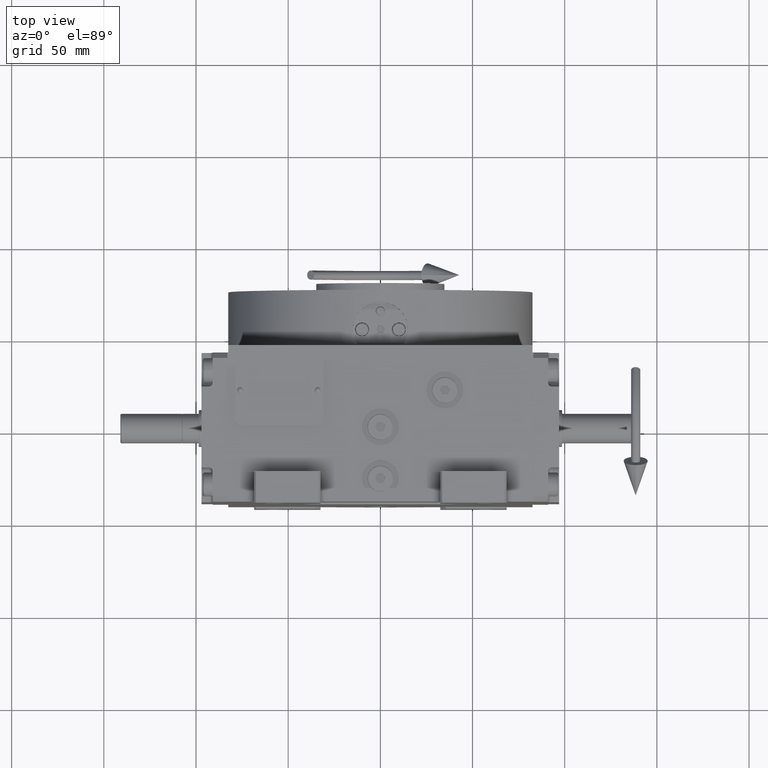
[diagram: clean part render]
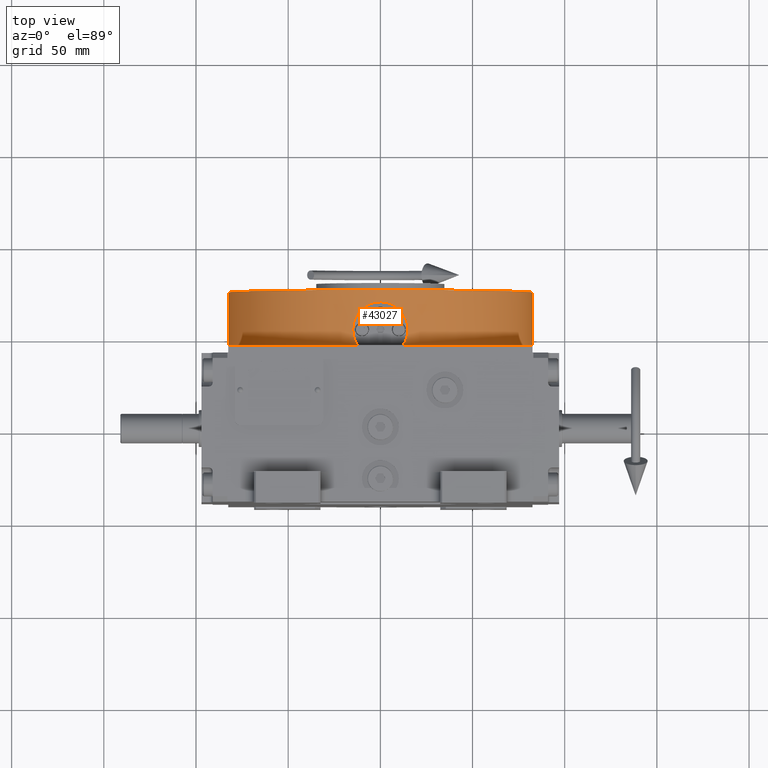
[diagram: same view with one face highlighted and labeled with its STEP entity id]
A machine part, top view. The second image highlights one B-rep face of the part: STEP entity #43027.
In plain terms, the highlighted cylindrical surface (partial cylindrical patch) has radius 82.5 mm, axis along (0, 1, 0).
Its self-contained STEP definition (entity closure, byte-faithful):
#1494 = AXIS2_PLACEMENT_3D ( 'NONE', #35646, #18937, #4670 ) ;
#1743 = B_SPLINE_CURVE_WITH_KNOTS ( 'NONE', 3,
 ( #62544, #32519, #55246, #17620, #16118, #22794, #45529, #57073, #48308, #57695 ),
 .UNSPECIFIED., .F., .F.,
 ( 4, 2, 2, 2, 4 ),
 ( 0.000000000000000000, 0.01817764895628013258, 0.03635529791256026516, 0.07271059582512048869, 0.1454211916502409219 ),
 .UNSPECIFIED. ) ;
#1829 = CARTESIAN_POINT ( 'NONE',  ( -4.811342207377684588, -82.36459328412949787, 23.24128728243599440 ) ) ;
#2223 = EDGE_CURVE ( 'NONE', #39629, #24940, #40458, .T. ) ;
#2483 = CARTESIAN_POINT ( 'NONE',  ( 11.30536172407987650, -81.72474593102090523, 18.90776664378990901 ) ) ;
#2791 = CARTESIAN_POINT ( 'NONE',  ( 2.431423179542332669, -82.46555639784538982, 23.80969995749037338 ) ) ;
#3310 = VERTEX_POINT ( 'NONE', #13736 ) ;
#3597 = CARTESIAN_POINT ( 'NONE',  ( -12.00000000000000000, -81.62260716247999426, 0.000000000000000000 ) ) ;
#4315 = CARTESIAN_POINT ( 'NONE',  ( 14.74248490922440880, -81.17372402366743245, 5.799389260054983453 ) ) ;
#4321 = ORIENTED_EDGE ( 'NONE', *, *, #19583, .T. ) ;
#4670 = DIRECTION ( 'NONE',  ( -1.000000000000000000, 0.000000000000000000, 0.000000000000000000 ) ) ;
#5190 = CARTESIAN_POINT ( 'NONE',  ( 82.49999999999998579, -1.010322486831990379E-14, 0.000000000000000000 ) ) ;
#5601 = EDGE_CURVE ( 'NONE', #38348, #8792, #55719, .T. ) ;
#6057 = CARTESIAN_POINT ( 'NONE',  ( 82.49999999999998579, -1.010300241903009221E-14, 0.000000000000000000 ) ) ;
#6683 = CARTESIAN_POINT ( 'NONE',  ( 14.21962999529760197, -81.26544602374748649, 13.80011905861209520 ) ) ;
#6981 = CARTESIAN_POINT ( 'NONE',  ( -14.05465484448405888, -81.29423505555718066, 14.26388389374271348 ) ) ;
#7312 = CARTESIAN_POINT ( 'NONE',  ( -0.9749065849585353272, -82.49566829684266622, 23.97626193698611630 ) ) ;
#7635 = CARTESIAN_POINT ( 'NONE',  ( 13.02891348785843917, -81.46657792094852368, 16.49810643378964770 ) ) ;
#7746 = CARTESIAN_POINT ( 'NONE',  ( 0.000000000000000000, 0.000000000000000000, 0.000000000000000000 ) ) ;
#8792 = VERTEX_POINT ( 'NONE', #60413 ) ;
#10440 = CARTESIAN_POINT ( 'NONE',  ( 12.00000000000000000, -81.62260716247999426, 0.000000000000000000 ) ) ;
#11549 = CARTESIAN_POINT ( 'NONE',  ( 14.50226475351318811, -81.21548443283947449, 12.86326937730964204 ) ) ;
#11874 = CARTESIAN_POINT ( 'NONE',  ( 8.730210659104772120, -82.03781768206627589, 21.20768323055676063 ) ) ;
#12050 = EDGE_CURVE ( 'NONE', #3310, #24940, #62596, .T. ) ;
#12171 = CARTESIAN_POINT ( 'NONE',  ( -14.97611104150528405, -81.12933149880575456, 9.976411005623861072 ) ) ;
#12502 = CARTESIAN_POINT ( 'NONE',  ( -14.62018483521941903, -81.19427011681041506, 12.38958309517191125 ) ) ;
#13529 = CARTESIAN_POINT ( 'NONE',  ( 0.000000000000000000, 0.000000000000000000, 30.49999999999999289 ) ) ;
#13736 = CARTESIAN_POINT ( 'NONE',  ( -82.50000000000001421, 2.020633851199993078E-14, 30.49999999999999289 ) ) ;
#14050 = CARTESIAN_POINT ( 'NONE',  ( 15.00017790217110836, -81.12487080390822314, 7.399368257337098242 ) ) ;
#14665 = CARTESIAN_POINT ( 'NONE',  ( 13.98285332921872559, -81.30680104435214162, 3.511842341530857947 ) ) ;
#15440 = ORIENTED_EDGE ( 'NONE', *, *, #17759, .T. ) ;
#15954 = DIRECTION ( 'NONE',  ( 0.000000000000000000, 0.000000000000000000, 1.000000000000000000 ) ) ;
#16118 = CARTESIAN_POINT ( 'NONE',  ( -13.10624451707161064, -81.45251509904302623, 1.693301029072924457 ) ) ;
#16417 = CARTESIAN_POINT ( 'NONE',  ( -15.00000155215765929, -81.12491227879678490, 8.999999541712211837 ) ) ;
#17067 = CARTESIAN_POINT ( 'NONE',  ( -1.945796341396865525, -82.47847966099942596, 23.88122612831212166 ) ) ;
#17620 = CARTESIAN_POINT ( 'NONE',  ( -12.90388583830122649, -81.48489037961125803, 1.341496897383961162 ) ) ;
#17684 = CARTESIAN_POINT ( 'NONE',  ( -7.484978948461018078, -82.16090774029784427, 22.00829641613369247 ) ) ;
#17759 = EDGE_CURVE ( 'NONE', #8792, #17818, #47649, .T. ) ;
#17818 = VERTEX_POINT ( 'NONE', #21459 ) ;
#18756 = CARTESIAN_POINT ( 'NONE',  ( 0.000000000000000000, 0.000000000000000000, 0.000000000000000000 ) ) ;
#18937 = DIRECTION ( 'NONE',  ( 0.000000000000000000, 0.000000000000000000, 1.000000000000000000 ) ) ;
#19583 = EDGE_CURVE ( 'NONE', #17818, #39629, #25689, .T. ) ;
#20051 = CARTESIAN_POINT ( 'NONE',  ( -82.50000000000001421, 2.020633851199993078E-14, 0.000000000000000000 ) ) ;
#21154 = VECTOR ( 'NONE', #15954, 1000.000000000000000 ) ;
#21286 = CARTESIAN_POINT ( 'NONE',  ( -13.02860497951152574, -81.46662816327996381, 16.49865198838897484 ) ) ;
#21459 = CARTESIAN_POINT ( 'NONE',  ( 12.00000000000000000, -81.62260716247999426, 0.000000000000000000 ) ) ;
#21586 = CARTESIAN_POINT ( 'NONE',  ( 14.99989816169959411, -81.12492252780923252, 9.486904479132544310 ) ) ;
#21908 = CARTESIAN_POINT ( 'NONE',  ( -14.50208352788519228, -81.21551683938376698, 12.86383315645771575 ) ) ;
#22242 = CARTESIAN_POINT ( 'NONE',  ( 14.81014688631922027, -81.15983520902004500, 11.42877646947460057 ) ) ;
#22535 = CARTESIAN_POINT ( 'NONE',  ( -8.729544479475640273, -82.03788872213942795, 21.20816065199864298 ) ) ;
#22794 = CARTESIAN_POINT ( 'NONE',  ( -13.66693360478552854, -81.36097572575444303, 2.765632748514421202 ) ) ;
#24385 = CARTESIAN_POINT ( 'NONE',  ( 13.66723119669916819, -81.36092580131199270, 2.766280334785800044 ) ) ;
#24940 = VERTEX_POINT ( 'NONE', #61420 ) ;
#25436 = CARTESIAN_POINT ( 'NONE',  ( -15.00000155215765929, -81.12491227879678490, 8.999999541712211837 ) ) ;
#25689 = CIRCLE ( 'NONE', #32894, 82.50000000000001421 ) ;
#26447 = CARTESIAN_POINT ( 'NONE',  ( -9.125874858034199733, -81.99461287356496086, 20.91473132629081633 ) ) ;
#26756 = CARTESIAN_POINT ( 'NONE',  ( -14.88113668230524134, -81.14680586697889453, 10.94705578319436157 ) ) ;
#27088 = CARTESIAN_POINT ( 'NONE',  ( 0.9757833380981876248, -82.49565794798510865, 23.97620529776547116 ) ) ;
#29242 = CARTESIAN_POINT ( 'NONE',  ( 12.47279196628402254, -81.55199022706000278, 0.6576875248769845639 ) ) ;
#30516 = LINE ( 'NONE', #60229, #21154 ) ;
#30991 = CARTESIAN_POINT ( 'NONE',  ( 0.4888429166140731419, -82.49999735124053757, 23.99998603411285103 ) ) ;
#31312 = CARTESIAN_POINT ( 'NONE',  ( 13.49400507702379315, -81.38983779311415390, 15.62360459987141326 ) ) ;
#31928 = CARTESIAN_POINT ( 'NONE',  ( -14.21939720915072236, -81.26548680187907792, 13.80076203430779636 ) ) ;
#32257 = CARTESIAN_POINT ( 'NONE',  ( -9.890504462964388566, -81.90589755126528360, 20.28798289320899073 ) ) ;
#32511 = CIRCLE ( 'NONE', #1494, 82.50000000000000000 ) ;
#32517 = ORIENTED_EDGE ( 'NONE', *, *, #43912, .T. ) ;
#32519 = CARTESIAN_POINT ( 'NONE',  ( -12.24319486889437414, -81.58685311677562879, 0.3242598251943211718 ) ) ;
#32894 = AXIS2_PLACEMENT_3D ( 'NONE', #7746, #62410, #37843 ) ;
#33471 = AXIS2_PLACEMENT_3D ( 'NONE', #18756, #52097, #47220 ) ;
#33513 = ORIENTED_EDGE ( 'NONE', *, *, #12050, .F. ) ;
#34313 = DIRECTION ( 'NONE',  ( 0.000000000000000000, 0.000000000000000000, 1.000000000000000000 ) ) ;
#35646 = CARTESIAN_POINT ( 'NONE',  ( 0.000000000000000000, 0.000000000000000000, 0.000000000000000000 ) ) ;
#36145 = CARTESIAN_POINT ( 'NONE',  ( 9.126528520268772482, -81.99454014431202609, 20.91422892542598788 ) ) ;
#36474 = CARTESIAN_POINT ( 'NONE',  ( 11.93547449364186264, -81.63394118524294640, 18.13850242473971264 ) ) ;
#37087 = CARTESIAN_POINT ( 'NONE',  ( 4.812155808953960445, -82.36454601314801494, 23.24101326873693196 ) ) ;
#37843 = DIRECTION ( 'NONE',  ( 0.1454545454545079775, -0.9893649353027538229, 0.000000000000000000 ) ) ;
#38348 = VERTEX_POINT ( 'NONE', #25436 ) ;
#38435 = DIRECTION ( 'NONE',  ( -1.000000000000000000, 0.000000000000000000, 0.000000000000000000 ) ) ;
#39629 = VERTEX_POINT ( 'NONE', #6057 ) ;
#40458 = LINE ( 'NONE', #5190, #50191 ) ;
#40998 = CARTESIAN_POINT ( 'NONE',  ( -13.49373063831430919, -81.38988350970689112, 15.62419185199609650 ) ) ;
#41319 = CARTESIAN_POINT ( 'NONE',  ( 14.99998170468830949, -81.12496520513606413, 8.999999993001440046 ) ) ;
#41642 = CARTESIAN_POINT ( 'NONE',  ( -6.617142359139878138, -82.23535187233964905, 22.47052742801817615 ) ) ;
#41959 = CARTESIAN_POINT ( 'NONE',  ( -2.430560769728152604, -82.46558182958291638, 23.80984091961616755 ) ) ;
#42262 = CARTESIAN_POINT ( 'NONE',  ( 6.624688226116246526, -82.23860887313442447, 22.49344792348201594 ) ) ;
#43027 = ADVANCED_FACE ( 'NONE', ( #43335 ), #63039, .T. ) ;
#43335 = FACE_OUTER_BOUND ( 'NONE', #50841, .T. ) ;
#43535 = ORIENTED_EDGE ( 'NONE', *, *, #46824, .F. ) ;
#43632 = ORIENTED_EDGE ( 'NONE', *, *, #2223, .T. ) ;
#43791 = CARTESIAN_POINT ( 'NONE',  ( 13.10652166113867167, -81.45247052056652137, 1.693759511858070832 ) ) ;
#43912 = EDGE_CURVE ( 'NONE', #44431, #47009, #32511, .T. ) ;
#44431 = VERTEX_POINT ( 'NONE', #20051 ) ;
#45529 = CARTESIAN_POINT ( 'NONE',  ( -13.98260586172614417, -81.30684380208695927, 3.511029366357954373 ) ) ;
#45847 = CARTESIAN_POINT ( 'NONE',  ( -0.4879484670812267999, -82.50000264633506220, 24.00001391814626928 ) ) ;
#46152 = CARTESIAN_POINT ( 'NONE',  ( -10.25790594505797237, -81.86054721232861198, 19.95533894909772954 ) ) ;
#46800 = CARTESIAN_POINT ( 'NONE',  ( 1.946678680942775408, -82.47845885749219974, 23.88111003742973182 ) ) ;
#46824 = EDGE_CURVE ( 'NONE', #44431, #3310, #30516, .T. ) ;
#47009 = VERTEX_POINT ( 'NONE', #3597 ) ;
#47107 = CARTESIAN_POINT ( 'NONE',  ( 14.88111878486925832, -81.14680913315217481, 10.94694900896201339 ) ) ;
#47220 = DIRECTION ( 'NONE',  ( 1.000000000000000000, 0.000000000000000000, 0.000000000000000000 ) ) ;
#47649 = B_SPLINE_CURVE_WITH_KNOTS ( 'NONE', 3,
 ( #58964, #14050, #4315, #14665, #24385, #43791, #63793, #29242, #53484, #10440 ),
 .UNSPECIFIED., .F., .F.,
 ( 4, 2, 2, 2, 4 ),
 ( 0.8543444895616735257, 0.9271722447808367074, 0.9635861223904182982, 0.9817930611952091491, 1.000000000000000000 ),
 .UNSPECIFIED. ) ;
#47898 = EDGE_CURVE ( 'NONE', #47009, #38348, #1743, .T. ) ;
#48308 = CARTESIAN_POINT ( 'NONE',  ( -15.00012495507364818, -81.12488059373359306, 7.400251699618396017 ) ) ;
#48418 = ORIENTED_EDGE ( 'NONE', *, *, #5601, .T. ) ;
#49892 = ORIENTED_EDGE ( 'NONE', *, *, #47898, .T. ) ;
#50191 = VECTOR ( 'NONE', #34313, 1000.000000000000000 ) ;
#50716 = CARTESIAN_POINT ( 'NONE',  ( 7.499193382787055384, -82.16259812932356965, 22.02817527205979431 ) ) ;
#50841 = EDGE_LOOP ( 'NONE', ( #4321, #43632, #33513, #43535, #32517, #49892, #48418, #15440 ) ) ;
#51031 = CARTESIAN_POINT ( 'NONE',  ( 14.62034687227734686, -81.19424092436567264, 12.38900085948214169 ) ) ;
#51329 = CARTESIAN_POINT ( 'NONE',  ( -3.867827837291152537, -82.41486004604385585, 23.52566220404655439 ) ) ;
#51652 = CARTESIAN_POINT ( 'NONE',  ( -7.908806210085963073, -82.12107474416406205, 21.75512952174813819 ) ) ;
#51977 = CARTESIAN_POINT ( 'NONE',  ( -14.81001008892855353, -81.15986018706161076, 11.42951172787877923 ) ) ;
#52097 = DIRECTION ( 'NONE',  ( 0.000000000000000000, 0.000000000000000000, 1.000000000000000000 ) ) ;
#53307 = DIRECTION ( 'NONE',  ( 0.000000000000000000, 0.000000000000000000, 1.000000000000000000 ) ) ;
#53484 = CARTESIAN_POINT ( 'NONE',  ( 12.24331260194398219, -81.58683580788726886, 0.3244168025936693400 ) ) ;
#55246 = CARTESIAN_POINT ( 'NONE',  ( -12.47259339607201056, -81.55202047700251455, 0.6574111697099772611 ) ) ;
#55541 = CARTESIAN_POINT ( 'NONE',  ( 14.05486030038500900, -81.29419948058227874, 14.26331805387535923 ) ) ;
#55719 = B_SPLINE_CURVE_WITH_KNOTS ( 'NONE', 3,
 ( #16417, #56488, #12171, #26756, #51977, #12502, #21908, #31928, #6981, #40998, #21286, #61348, #55869, #46152, #32257, #26447, #22535, #51652, #17684, #41642, #56188, #1829, #51329, #41959, #17067, #7312, #45847, #30991, #27088, #46800, #2791, #60696, #37087, #42262, #50716, #11874, #36145, #61976, #61650, #2483, #36474, #7635, #31312, #55541, #6683, #11549, #51031, #22242, #47107, #56815, #21586, #41319 ),
 .UNSPECIFIED., .F., .F.,
 ( 4, 2, 2, 2, 2, 2, 2, 2, 2, 2, 2, 2, 2, 2, 2, 2, 2, 2, 2, 2, 2, 2, 2, 2, 2, 4 ),
 ( 0.1454211916502409219, 0.1675750447099730867, 0.1897288977697052237, 0.2118827508294373885, 0.2340366038891695255, 0.2783443100086339106, 0.3226520161280983512, 0.3448058691878305160, 0.3669597222475627918, 0.3891135753072950121, 0.4112674283670272324, 0.4555751344864917840, 0.4777289875462240598, 0.4998828406059562801, 0.5220366936656886114, 0.5441905467254208872, 0.5884982528448854389, 0.6328059589643499905, 0.6549598120240823773, 0.6771136650838146531, 0.7214213712032793158, 0.7657290773227439784, 0.7878829303824763652, 0.8100367834422087521, 0.8321906365019411389, 0.8543444895616735257 ),
 .UNSPECIFIED. ) ;
#55869 = CARTESIAN_POINT ( 'NONE',  ( -11.30480490646017699, -81.72482293125531783, 18.90840080558208314 ) ) ;
#56188 = CARTESIAN_POINT ( 'NONE',  ( -6.170707242067203779, -82.27015669309764689, 22.68071997146563135 ) ) ;
#56421 = AXIS2_PLACEMENT_3D ( 'NONE', #13529, #53307, #38435 ) ;
#56488 = CARTESIAN_POINT ( 'NONE',  ( -14.99996597817484556, -81.12490998857889224, 9.487419267298863090 ) ) ;
#56815 = CARTESIAN_POINT ( 'NONE',  ( 14.97604040435058970, -81.12934452212022052, 9.976003562772230993 ) ) ;
#57073 = CARTESIAN_POINT ( 'NONE',  ( -14.74242422404743813, -81.17373584456728963, 5.798881419567308626 ) ) ;
#57695 = CARTESIAN_POINT ( 'NONE',  ( -15.00000155215765929, -81.12491227879678490, 8.999999541712211837 ) ) ;
#58964 = CARTESIAN_POINT ( 'NONE',  ( 14.99998170468830949, -81.12496520513606413, 8.999999993001440046 ) ) ;
#60229 = CARTESIAN_POINT ( 'NONE',  ( -82.50000000000001421, 1.010322486831990379E-14, 0.000000000000000000 ) ) ;
#60413 = CARTESIAN_POINT ( 'NONE',  ( 14.99998170468830949, -81.12496520513606413, 8.999999993001440046 ) ) ;
#60696 = CARTESIAN_POINT ( 'NONE',  ( 3.868685143425967254, -82.41481977167674700, 23.52543458421588696 ) ) ;
#61348 = CARTESIAN_POINT ( 'NONE',  ( -11.93490206567074807, -81.63402577779145020, 18.13927526272372148 ) ) ;
#61420 = CARTESIAN_POINT ( 'NONE',  ( 82.49999999999998579, -1.010300241903009221E-14, 30.49999999999999289 ) ) ;
#61650 = CARTESIAN_POINT ( 'NONE',  ( 10.25845936648661372, -81.86047786769078982, 19.95481955293025678 ) ) ;
#61976 = CARTESIAN_POINT ( 'NONE',  ( 9.891167989166826047, -81.90581744979145640, 20.28740639923825739 ) ) ;
#62410 = DIRECTION ( 'NONE',  ( 0.000000000000000000, 0.000000000000000000, 1.000000000000000000 ) ) ;
#62544 = CARTESIAN_POINT ( 'NONE',  ( -12.00000000000000000, -81.62260716247999426, 0.000000000000000000 ) ) ;
#62596 = CIRCLE ( 'NONE', #56421, 82.50000000000000000 ) ;
#63039 = CYLINDRICAL_SURFACE ( 'NONE', #33471, 82.50000000000000000 ) ;
#63793 = CARTESIAN_POINT ( 'NONE',  ( 12.90417259304091502, -81.48484508862800624, 1.341936808822923100 ) ) ;